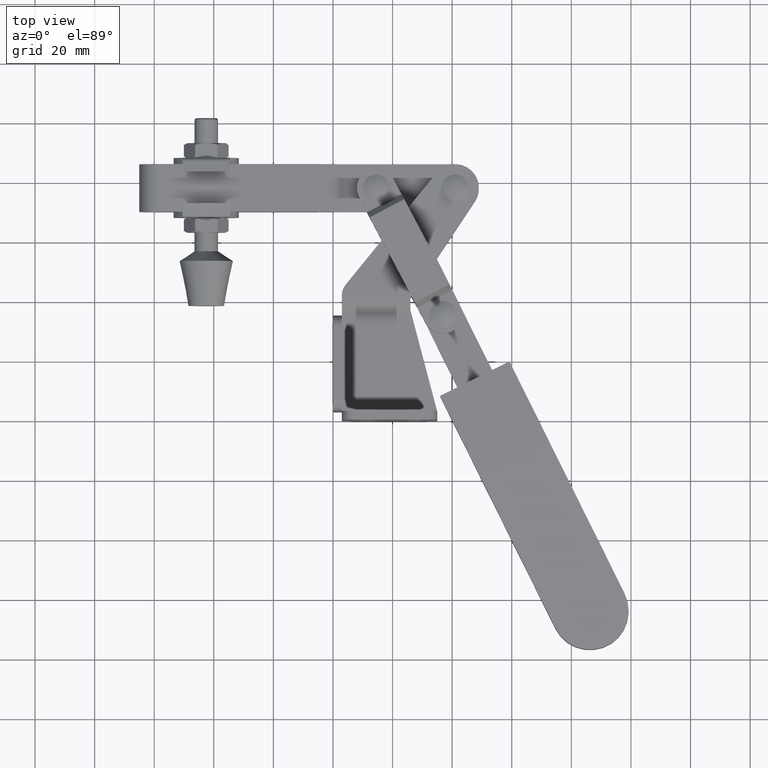
[diagram: clean part render]
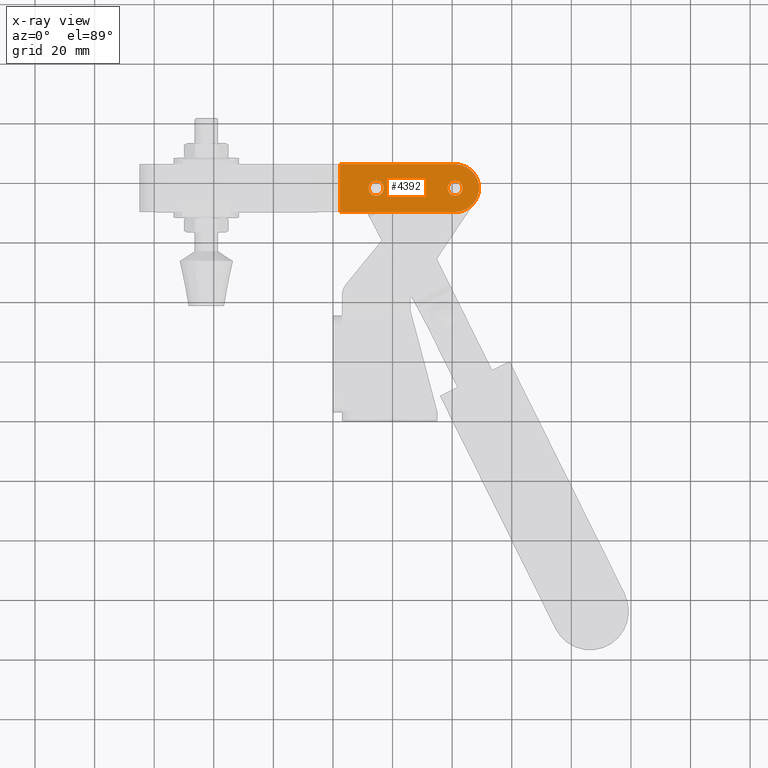
[diagram: x-ray — body ghosted, one internal face saturated and labeled with its STEP entity id]
A machine part, top view, then the same camera in x-ray: the body is ghosted and one INTERNAL B-rep face — a face not visible from any outside direction — is saturated and labeled: STEP entity #4392.
In plain terms, the highlighted planar face has unit normal (0, 0, -1).
Its self-contained STEP definition (entity closure, byte-faithful):
#376 = VECTOR ( 'NONE', #5063, 1000.000000000000000 ) ;
#430 = EDGE_CURVE ( 'NONE', #5808, #7320, #1763, .T. ) ;
#537 = AXIS2_PLACEMENT_3D ( 'NONE', #7216, #8391, #6826 ) ;
#544 = CIRCLE ( 'NONE', #5770, 2.500000000000002200 ) ;
#714 = DIRECTION ( 'NONE',  ( -7.573328176411969400E-030, -3.714974382124918000E-015, 1.000000000000000000 ) ) ;
#987 = CARTESIAN_POINT ( 'NONE',  ( -2.861971830984799700, 85.99999999999940300, -5.000000000512428100E-005 ) ) ;
#1026 = CARTESIAN_POINT ( 'NONE',  ( -2.861971830984799700, 85.99999999999940300, -5.000000000512428100E-005 ) ) ;
#1030 = FACE_OUTER_BOUND ( 'NONE', #1192, .T. ) ;
#1192 = EDGE_LOOP ( 'NONE', ( #5383, #6256, #1604, #4745 ) ) ;
#1384 = VERTEX_POINT ( 'NONE', #6794 ) ;
#1389 = EDGE_CURVE ( 'NONE', #7320, #1384, #9355, .T. ) ;
#1604 = ORIENTED_EDGE ( 'NONE', *, *, #6319, .T. ) ;
#1644 = EDGE_CURVE ( 'NONE', #2381, #4742, #5530, .T. ) ;
#1763 = LINE ( 'NONE', #4487, #4407 ) ;
#1938 = DIRECTION ( 'NONE',  ( -7.573328176411969400E-030, -3.714974382124918000E-015, 1.000000000000000000 ) ) ;
#1999 = VERTEX_POINT ( 'NONE', #8037 ) ;
#2206 = VERTEX_POINT ( 'NONE', #5981 ) ;
#2265 = CIRCLE ( 'NONE', #7027, 2.500000000000002200 ) ;
#2372 = DIRECTION ( 'NONE',  ( -7.573328176411969400E-030, -3.714974382124918000E-015, 1.000000000000000000 ) ) ;
#2381 = VERTEX_POINT ( 'NONE', #2607 ) ;
#2432 = CARTESIAN_POINT ( 'NONE',  ( 41.00000000000117200, 77.99999999999936100, -5.000000003484407100E-005 ) ) ;
#2543 = CARTESIAN_POINT ( 'NONE',  ( 41.00000000000117200, 75.49999999999936100, -5.000000004413151000E-005 ) ) ;
#2607 = CARTESIAN_POINT ( 'NONE',  ( 41.00000000000117200, 80.49999999999936100, -5.000000002555663300E-005 ) ) ;
#2633 = DIRECTION ( 'NONE',  ( 0.0000000000000000000, 1.000000000000000000, 3.714975333583031000E-015 ) ) ;
#2641 = EDGE_CURVE ( 'NONE', #5808, #2206, #3373, .T. ) ;
#3081 = ORIENTED_EDGE ( 'NONE', *, *, #8845, .F. ) ;
#3373 = LINE ( 'NONE', #987, #9187 ) ;
#3587 = CARTESIAN_POINT ( 'NONE',  ( 2.286493693694907800, 85.99999999999940300, -5.000000000469060000E-005 ) ) ;
#3987 = CARTESIAN_POINT ( 'NONE',  ( 2.286493693694907800, 69.99999999999934600, -5.000000006413019500E-005 ) ) ;
#4128 = ORIENTED_EDGE ( 'NONE', *, *, #6428, .F. ) ;
#4141 = DIRECTION ( 'NONE',  ( -1.229485263598562000E-016, -1.000000000000000000, -3.714974382124920400E-015 ) ) ;
#4379 = DIRECTION ( 'NONE',  ( 0.0000000000000000000, 1.000000000000000000, 3.714974010094032000E-015 ) ) ;
#4392 = ADVANCED_FACE ( 'NONE', ( #7404, #5764, #1030 ), #8460, .F. ) ;
#4407 = VECTOR ( 'NONE', #4141, 1000.000000000000000 ) ;
#4487 = CARTESIAN_POINT ( 'NONE',  ( 2.286493693694907800, 69.99999999999934600, -5.000000006456387600E-005 ) ) ;
#4681 = DIRECTION ( 'NONE',  ( 0.0000000000000000000, 1.000000000000000000, 3.714975333583031000E-015 ) ) ;
#4742 = VERTEX_POINT ( 'NONE', #2543 ) ;
#4745 = ORIENTED_EDGE ( 'NONE', *, *, #2641, .F. ) ;
#4751 = ORIENTED_EDGE ( 'NONE', *, *, #1644, .F. ) ;
#4787 = EDGE_LOOP ( 'NONE', ( #3081, #4751 ) ) ;
#4805 = DIRECTION ( 'NONE',  ( 0.0000000000000000000, 1.000000000000000000, 3.714975333583031000E-015 ) ) ;
#4839 = DIRECTION ( 'NONE',  ( 1.229485263598562000E-016, 1.000000000000000000, 3.714974382124920400E-015 ) ) ;
#5063 = DIRECTION ( 'NONE',  ( 1.000000000000000000, -1.229485263598562000E-016, 7.118237074455223700E-030 ) ) ;
#5383 = ORIENTED_EDGE ( 'NONE', *, *, #430, .T. ) ;
#5517 = EDGE_LOOP ( 'NONE', ( #7368, #4128 ) ) ;
#5530 = CIRCLE ( 'NONE', #5794, 2.500000000000002200 ) ;
#5764 = FACE_BOUND ( 'NONE', #4787, .T. ) ;
#5769 = CARTESIAN_POINT ( 'NONE',  ( -2.861971830984799700, 69.99999999999934600, -5.000000006456387600E-005 ) ) ;
#5770 = AXIS2_PLACEMENT_3D ( 'NONE', #7179, #714, #4681 ) ;
#5794 = AXIS2_PLACEMENT_3D ( 'NONE', #7562, #9120, #4805 ) ;
#5808 = VERTEX_POINT ( 'NONE', #3587 ) ;
#5917 = AXIS2_PLACEMENT_3D ( 'NONE', #1026, #8334, #4839 ) ;
#5981 = CARTESIAN_POINT ( 'NONE',  ( 41.00000000000117200, 85.99999999999940300, -5.000000000512428100E-005 ) ) ;
#6256 = ORIENTED_EDGE ( 'NONE', *, *, #1389, .T. ) ;
#6319 = EDGE_CURVE ( 'NONE', #1384, #2206, #8459, .T. ) ;
#6428 = EDGE_CURVE ( 'NONE', #8303, #1999, #544, .T. ) ;
#6775 = DIRECTION ( 'NONE',  ( 1.000000000000000000, -1.229485263598562000E-016, 7.118237074455223700E-030 ) ) ;
#6794 = CARTESIAN_POINT ( 'NONE',  ( 41.00000000000117200, 69.99999999999931800, -5.050000006516806000E-005 ) ) ;
#6809 = CIRCLE ( 'NONE', #537, 2.500000000000002200 ) ;
#6826 = DIRECTION ( 'NONE',  ( 0.0000000000000000000, 1.000000000000000000, 3.714975333583031000E-015 ) ) ;
#7027 = AXIS2_PLACEMENT_3D ( 'NONE', #2432, #1938, #2633 ) ;
#7179 = CARTESIAN_POINT ( 'NONE',  ( 14.50000000000120600, 77.99999999999936100, -5.000000003484407100E-005 ) ) ;
#7216 = CARTESIAN_POINT ( 'NONE',  ( 14.50000000000120600, 77.99999999999936100, -5.000000003484407100E-005 ) ) ;
#7320 = VERTEX_POINT ( 'NONE', #3987 ) ;
#7368 = ORIENTED_EDGE ( 'NONE', *, *, #8104, .F. ) ;
#7404 = FACE_BOUND ( 'NONE', #5517, .T. ) ;
#7562 = CARTESIAN_POINT ( 'NONE',  ( 41.00000000000117200, 77.99999999999936100, -5.000000003484407100E-005 ) ) ;
#8037 = CARTESIAN_POINT ( 'NONE',  ( 14.50000000000120600, 75.49999999999936100, -5.000000004413151000E-005 ) ) ;
#8104 = EDGE_CURVE ( 'NONE', #1999, #8303, #6809, .T. ) ;
#8303 = VERTEX_POINT ( 'NONE', #8340 ) ;
#8334 = DIRECTION ( 'NONE',  ( 7.573328176411969400E-030, 3.714974382124920400E-015, -1.000000000000000000 ) ) ;
#8340 = CARTESIAN_POINT ( 'NONE',  ( 14.50000000000120600, 80.49999999999936100, -5.000000002555663300E-005 ) ) ;
#8391 = DIRECTION ( 'NONE',  ( -7.573328176411969400E-030, -3.714974382124918000E-015, 1.000000000000000000 ) ) ;
#8459 = CIRCLE ( 'NONE', #8810, 8.000000000000048000 ) ;
#8460 = PLANE ( 'NONE',  #5917 ) ;
#8567 = CARTESIAN_POINT ( 'NONE',  ( 41.00000000000117200, 77.99999999999936100, -5.000000003484407100E-005 ) ) ;
#8810 = AXIS2_PLACEMENT_3D ( 'NONE', #8567, #2372, #4379 ) ;
#8845 = EDGE_CURVE ( 'NONE', #4742, #2381, #2265, .T. ) ;
#9120 = DIRECTION ( 'NONE',  ( -7.573328176411969400E-030, -3.714974382124918000E-015, 1.000000000000000000 ) ) ;
#9187 = VECTOR ( 'NONE', #6775, 1000.000000000000000 ) ;
#9355 = LINE ( 'NONE', #5769, #376 ) ;